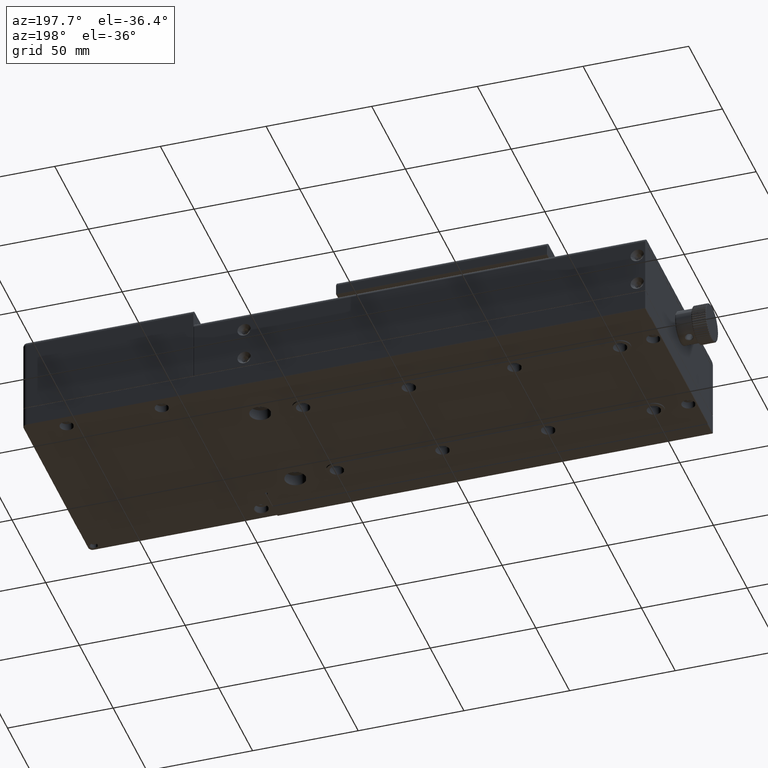
[diagram: clean part render]
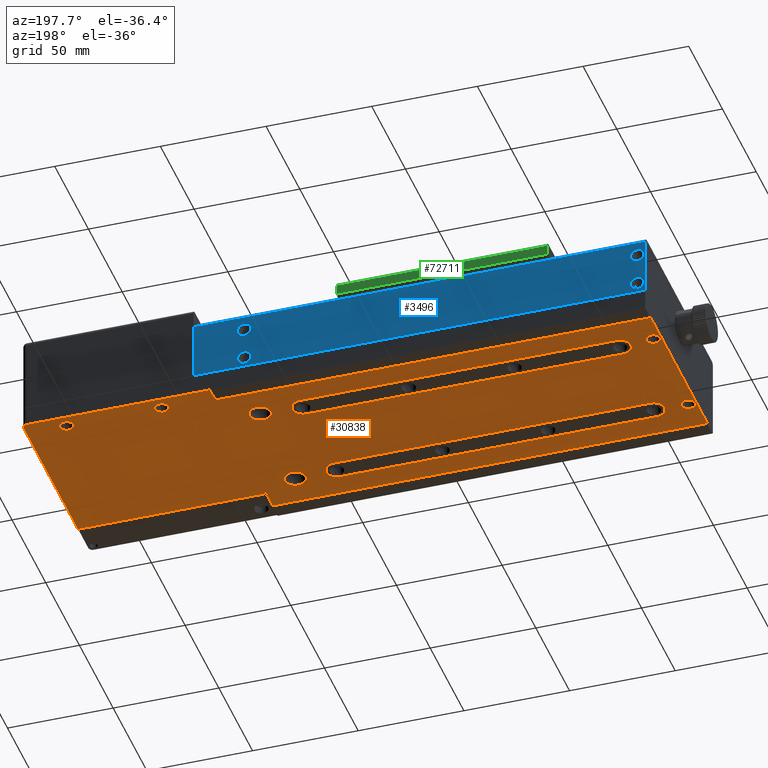
[diagram: same view with three faces highlighted in distinct colors, each labeled with its STEP entity id]
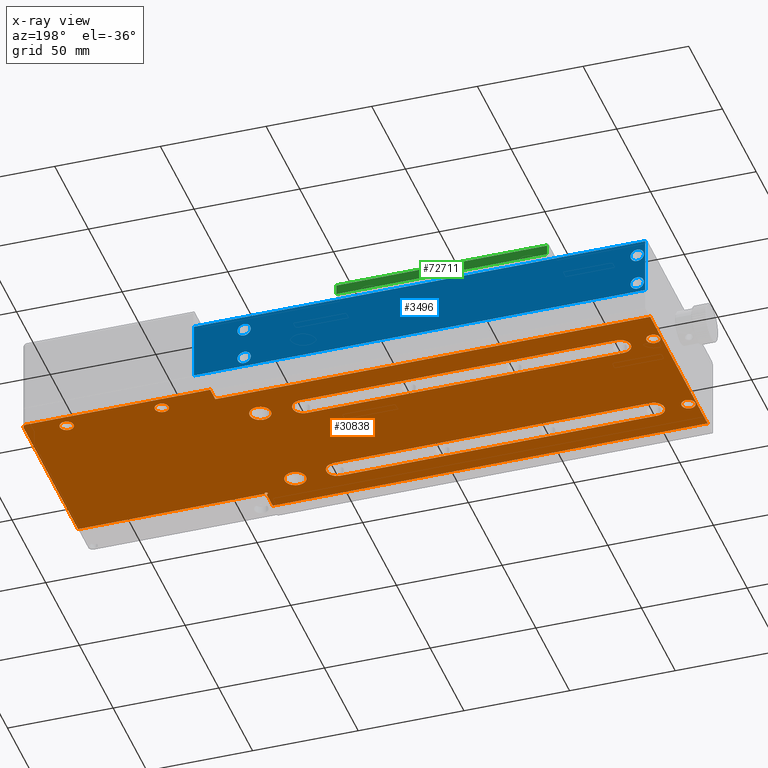
[diagram: x-ray of the same camera — body ghosted, the three highlighted faces saturated]
A machine part, auxiliary view with three faces highlighted in distinct colors.
The next image is the same camera in x-ray (body ghosted, the three faces saturated) — at least one of them is partly hidden behind the body in this view.
Their STEP definitions:

[orange] entity #30838 — the highlighted planar face has unit normal (0, 0, -1).
#260 = CARTESIAN_POINT ( 'NONE',  ( 1.039208799709893993, -15.00575141257550094, -4.500000000000000000 ) ) ;
#372 = DIRECTION ( 'NONE',  ( -1.000000000000000000, 0.000000000000000000, 0.000000000000000000 ) ) ;
#397 = ORIENTED_EDGE ( 'NONE', *, *, #12141, .F. ) ;
#851 = AXIS2_PLACEMENT_3D ( 'NONE', #67346, #29065, #39942 ) ;
#1474 = CARTESIAN_POINT ( 'NONE',  ( 124.0392087997100106, 59.99424858742450084, -4.500000000000000000 ) ) ;
#1729 = ORIENTED_EDGE ( 'NONE', *, *, #6424, .T. ) ;
#1809 = ORIENTED_EDGE ( 'NONE', *, *, #42033, .F. ) ;
#2228 = CARTESIAN_POINT ( 'NONE',  ( 1.039208799709893993, -20.00575141257549916, -4.500000000000000000 ) ) ;
#2288 = CIRCLE ( 'NONE', #3477, 5.000000000000000888 ) ;
#2392 = LINE ( 'NONE', #42519, #38881 ) ;
#2519 = DIRECTION ( 'NONE',  ( 1.000000000000000000, 0.000000000000000000, 0.000000000000000000 ) ) ;
#2535 = CARTESIAN_POINT ( 'NONE',  ( 110.2892087997097974, 53.49424858742450084, -4.500000000000000000 ) ) ;
#2768 = CARTESIAN_POINT ( 'NONE',  ( -168.7607912002899866, 52.49424858742450084, -4.500000000000000000 ) ) ;
#3369 = ORIENTED_EDGE ( 'NONE', *, *, #17003, .T. ) ;
#3477 = AXIS2_PLACEMENT_3D ( 'NONE', #35249, #58526, #372 ) ;
#3532 = DIRECTION ( 'NONE',  ( 0.000000000000000000, 0.000000000000000000, 1.000000000000000000 ) ) ;
#3565 = VERTEX_POINT ( 'NONE', #5712 ) ;
#3571 = EDGE_CURVE ( 'NONE', #11707, #47376, #60717, .T. ) ;
#4117 = ORIENTED_EDGE ( 'NONE', *, *, #12962, .T. ) ;
#4467 = EDGE_CURVE ( 'NONE', #59487, #14482, #13471, .T. ) ;
#4777 = CARTESIAN_POINT ( 'NONE',  ( 21.03920879970990043, 35.99424858742454347, -4.500000000000000000 ) ) ;
#5304 = CARTESIAN_POINT ( 'NONE',  ( 1.039208799709893993, 39.99424858742450084, -4.500000000000000000 ) ) ;
#5417 = CARTESIAN_POINT ( 'NONE',  ( -164.9607912002900036, -16.00575141257549916, -4.500000000000000000 ) ) ;
#5444 = VERTEX_POINT ( 'NONE', #59047 ) ;
#5712 = CARTESIAN_POINT ( 'NONE',  ( 103.7892087997099964, 53.49424858742450084, -4.500000000000000000 ) ) ;
#5863 = AXIS2_PLACEMENT_3D ( 'NONE', #6024, #45044, #62305 ) ;
#6024 = CARTESIAN_POINT ( 'NONE',  ( 37.03920879970985425, -22.80575141257549987, -4.500000000000000000 ) ) ;
#6221 = EDGE_CURVE ( 'NONE', #21733, #59487, #43617, .T. ) ;
#6424 = EDGE_CURVE ( 'NONE', #14981, #46180, #73620, .T. ) ;
#6694 = CARTESIAN_POINT ( 'NONE',  ( 6.039208799709900433, -15.00575141257550094, -4.500000000000000000 ) ) ;
#6892 = EDGE_LOOP ( 'NONE', ( #33093, #73965 ) ) ;
#7125 = DIRECTION ( 'NONE',  ( 0.000000000000000000, 0.000000000000000000, -1.000000000000000000 ) ) ;
#7179 = DIRECTION ( 'NONE',  ( -1.000000000000000000, 0.000000000000000000, 0.000000000000000000 ) ) ;
#7228 = FACE_BOUND ( 'NONE', #31924, .T. ) ;
#7364 = ORIENTED_EDGE ( 'NONE', *, *, #14759, .F. ) ;
#7446 = ORIENTED_EDGE ( 'NONE', *, *, #4467, .F. ) ;
#7488 = DIRECTION ( 'NONE',  ( -1.000000000000000000, 0.000000000000000000, 0.000000000000000000 ) ) ;
#7490 = CARTESIAN_POINT ( 'NONE',  ( 16.03920879970989688, 35.99424858742454347, -4.500000000000000000 ) ) ;
#7786 = EDGE_CURVE ( 'NONE', #14482, #40719, #58883, .T. ) ;
#8776 = AXIS2_PLACEMENT_3D ( 'NONE', #29463, #46691, #69566 ) ;
#8870 = VERTEX_POINT ( 'NONE', #12626 ) ;
#9773 = EDGE_LOOP ( 'NONE', ( #43996, #7446, #61356, #73186, #73623 ) ) ;
#10016 = DIRECTION ( 'NONE',  ( 0.000000000000000000, 0.000000000000000000, -1.000000000000000000 ) ) ;
#10289 = CARTESIAN_POINT ( 'NONE',  ( -148.9607912002899752, 29.99424858742450084, -4.500000000000000000 ) ) ;
#10540 = CARTESIAN_POINT ( 'NONE',  ( -168.7607912002899866, 52.49424858742450084, -4.500000000000000000 ) ) ;
#11295 = AXIS2_PLACEMENT_3D ( 'NONE', #260, #23158, #46017 ) ;
#11413 = DIRECTION ( 'NONE',  ( -1.000000000000000000, 0.000000000000000000, 0.000000000000000000 ) ) ;
#11509 = VECTOR ( 'NONE', #19862, 1000.000000000000000 ) ;
#11707 = VERTEX_POINT ( 'NONE', #59305 ) ;
#11720 = CARTESIAN_POINT ( 'NONE',  ( 126.0392087997099821, 52.49424858742450084, -4.500000000000000000 ) ) ;
#11771 = EDGE_LOOP ( 'NONE', ( #44816, #38352 ) ) ;
#12141 = EDGE_CURVE ( 'NONE', #14125, #16841, #53582, .T. ) ;
#12170 = ORIENTED_EDGE ( 'NONE', *, *, #57199, .T. ) ;
#12285 = VERTEX_POINT ( 'NONE', #20914 ) ;
#12451 = CIRCLE ( 'NONE', #65148, 3.250000000000002665 ) ;
#12626 = CARTESIAN_POINT ( 'NONE',  ( 58.78920879970989688, 53.49424858742450084, -4.500000000000000000 ) ) ;
#12843 = FACE_BOUND ( 'NONE', #60702, .T. ) ;
#12962 = EDGE_CURVE ( 'NONE', #71847, #74077, #2392, .T. ) ;
#12978 = CARTESIAN_POINT ( 'NONE',  ( 37.78920879970985425, -22.80575141257549987, -4.500000000000000000 ) ) ;
#13111 = DIRECTION ( 'NONE',  ( -1.000000000000000000, 0.000000000000000000, 0.000000000000000000 ) ) ;
#13471 = CIRCLE ( 'NONE', #63735, 4.999999999999999112 ) ;
#13686 = EDGE_LOOP ( 'NONE', ( #7364, #42168 ) ) ;
#13828 = CARTESIAN_POINT ( 'NONE',  ( -168.2107912002899752, 35.99424858742454347, -4.500000000000000000 ) ) ;
#14125 = VERTEX_POINT ( 'NONE', #18161 ) ;
#14321 = EDGE_CURVE ( 'NONE', #63554, #65011, #31293, .T. ) ;
#14482 = VERTEX_POINT ( 'NONE', #63113 ) ;
#14496 = AXIS2_PLACEMENT_3D ( 'NONE', #33269, #67379, #38156 ) ;
#14759 = EDGE_CURVE ( 'NONE', #3565, #69851, #41466, .T. ) ;
#14774 = EDGE_CURVE ( 'NONE', #57636, #14125, #29539, .T. ) ;
#14863 = CARTESIAN_POINT ( 'NONE',  ( -164.9607912002900036, 35.99424858742454347, -4.500000000000000000 ) ) ;
#14972 = CARTESIAN_POINT ( 'NONE',  ( 126.0392087997099821, 52.49424858742450084, -4.500000000000000000 ) ) ;
#14981 = VERTEX_POINT ( 'NONE', #29995 ) ;
#15032 = VERTEX_POINT ( 'NONE', #7490 ) ;
#15577 = DIRECTION ( 'NONE',  ( -1.000000000000000000, 0.000000000000000000, 0.000000000000000000 ) ) ;
#15602 = DIRECTION ( 'NONE',  ( -1.000000000000000000, 0.000000000000000000, 0.000000000000000000 ) ) ;
#15784 = DIRECTION ( 'NONE',  ( 0.000000000000000000, 0.000000000000000000, -1.000000000000000000 ) ) ;
#15805 = DIRECTION ( 'NONE',  ( 0.000000000000000000, -1.000000000000000000, 0.000000000000000000 ) ) ;
#15873 = DIRECTION ( 'NONE',  ( 0.000000000000000000, 1.000000000000000000, 0.000000000000000000 ) ) ;
#16116 = CIRCLE ( 'NONE', #44870, 3.250000000000002665 ) ;
#16170 = AXIS2_PLACEMENT_3D ( 'NONE', #47215, #7125, #13111 ) ;
#16841 = VERTEX_POINT ( 'NONE', #10289 ) ;
#16851 = ORIENTED_EDGE ( 'NONE', *, *, #58655, .F. ) ;
#17003 = EDGE_CURVE ( 'NONE', #49618, #30947, #26610, .T. ) ;
#17722 = DIRECTION ( 'NONE',  ( -1.000000000000000000, 0.000000000000000000, 0.000000000000000000 ) ) ;
#18161 = CARTESIAN_POINT ( 'NONE',  ( 1.039208799709893993, 29.99424858742450084, -4.500000000000000000 ) ) ;
#18681 = EDGE_LOOP ( 'NONE', ( #33038, #1729 ) ) ;
#18770 = VERTEX_POINT ( 'NONE', #51972 ) ;
#19092 = EDGE_LOOP ( 'NONE', ( #51270, #45440 ) ) ;
#19493 = ORIENTED_EDGE ( 'NONE', *, *, #48808, .F. ) ;
#19537 = DIRECTION ( 'NONE',  ( 0.000000000000000000, 0.000000000000000000, 1.000000000000000000 ) ) ;
#19862 = DIRECTION ( 'NONE',  ( -1.000000000000000000, 0.000000000000000000, 0.000000000000000000 ) ) ;
#20375 = EDGE_CURVE ( 'NONE', #15032, #34967, #46310, .T. ) ;
#20411 = CARTESIAN_POINT ( 'NONE',  ( 21.03920879970990043, 35.99424858742454347, -4.500000000000000000 ) ) ;
#20686 = DIRECTION ( 'NONE',  ( 0.000000000000000000, 0.000000000000000000, -1.000000000000000000 ) ) ;
#20914 = CARTESIAN_POINT ( 'NONE',  ( -148.9607912002899752, -10.00575141257547962, -4.500000000000000000 ) ) ;
#21334 = AXIS2_PLACEMENT_3D ( 'NONE', #4777, #71927, #62162 ) ;
#21733 = VERTEX_POINT ( 'NONE', #69610 ) ;
#21755 = VECTOR ( 'NONE', #17722, 1000.000000000000000 ) ;
#22341 = DIRECTION ( 'NONE',  ( 0.000000000000000000, 0.000000000000000000, 1.000000000000000000 ) ) ;
#22655 = CARTESIAN_POINT ( 'NONE',  ( 1.039208799709893993, 39.99424858742450084, -4.500000000000000000 ) ) ;
#22858 = VERTEX_POINT ( 'NONE', #49528 ) ;
#23158 = DIRECTION ( 'NONE',  ( 0.000000000000000000, 0.000000000000000000, -1.000000000000000000 ) ) ;
#24106 = FACE_BOUND ( 'NONE', #9773, .T. ) ;
#24960 = LINE ( 'NONE', #70686, #56540 ) ;
#25092 = CARTESIAN_POINT ( 'NONE',  ( 1.039208799709893993, 29.99424858742450084, -4.500000000000000000 ) ) ;
#25289 = DIRECTION ( 'NONE',  ( 1.000000000000000000, 0.000000000000000000, 0.000000000000000000 ) ) ;
#25334 = EDGE_CURVE ( 'NONE', #22858, #47276, #38033, .T. ) ;
#25931 = CIRCLE ( 'NONE', #72665, 3.250000000000002665 ) ;
#26398 = EDGE_CURVE ( 'NONE', #34967, #15032, #70307, .T. ) ;
#26428 = DIRECTION ( 'NONE',  ( -1.000000000000000000, 0.000000000000000000, 0.000000000000000000 ) ) ;
#26610 = LINE ( 'NONE', #14972, #49593 ) ;
#26708 = PLANE ( 'NONE',  #50485 ) ;
#26947 = AXIS2_PLACEMENT_3D ( 'NONE', #14863, #54632, #15602 ) ;
#27006 = CIRCLE ( 'NONE', #42572, 5.000000000000004441 ) ;
#27016 = ORIENTED_EDGE ( 'NONE', *, *, #20375, .T. ) ;
#27022 = EDGE_CURVE ( 'NONE', #65006, #60079, #72951, .T. ) ;
#28321 = AXIS2_PLACEMENT_3D ( 'NONE', #44290, #15784, #38678 ) ;
#28875 = LINE ( 'NONE', #73904, #63390 ) ;
#29059 = ORIENTED_EDGE ( 'NONE', *, *, #48883, .F. ) ;
#29065 = DIRECTION ( 'NONE',  ( 0.000000000000000000, 0.000000000000000000, -1.000000000000000000 ) ) ;
#29463 = CARTESIAN_POINT ( 'NONE',  ( 62.03920879970990399, 53.49424858742450084, -4.500000000000000000 ) ) ;
#29539 = CIRCLE ( 'NONE', #71473, 4.999999999999999112 ) ;
#29610 = EDGE_CURVE ( 'NONE', #22858, #63554, #62027, .T. ) ;
#29995 = CARTESIAN_POINT ( 'NONE',  ( -161.7107912002900036, 35.99424858742454347, -4.500000000000000000 ) ) ;
#30125 = VECTOR ( 'NONE', #2519, 1000.000000000000000 ) ;
#30317 = EDGE_CURVE ( 'NONE', #30947, #60079, #58706, .T. ) ;
#30584 = CIRCLE ( 'NONE', #54520, 4.999999999999999112 ) ;
#30838 = ADVANCED_FACE ( 'NONE', ( #24106, #46953, #12843, #52969, #35723, #58617, #7228, #70212, #44305 ), #26708, .T. ) ;
#30924 = ORIENTED_EDGE ( 'NONE', *, *, #30317, .T. ) ;
#30947 = VERTEX_POINT ( 'NONE', #60462 ) ;
#31293 = LINE ( 'NONE', #2768, #48604 ) ;
#31446 = DIRECTION ( 'NONE',  ( -1.000000000000000000, 0.000000000000000000, 0.000000000000000000 ) ) ;
#31717 = AXIS2_PLACEMENT_3D ( 'NONE', #55644, #45480, #51113 ) ;
#31924 = EDGE_LOOP ( 'NONE', ( #397, #73493, #16851, #1809, #29059 ) ) ;
#32249 = VECTOR ( 'NONE', #62723, 1000.000000000000000 ) ;
#32892 = DIRECTION ( 'NONE',  ( -1.000000000000000000, 0.000000000000000000, 0.000000000000000000 ) ) ;
#32982 = ORIENTED_EDGE ( 'NONE', *, *, #29610, .T. ) ;
#33038 = ORIENTED_EDGE ( 'NONE', *, *, #48230, .T. ) ;
#33093 = ORIENTED_EDGE ( 'NONE', *, *, #53687, .T. ) ;
#33269 = CARTESIAN_POINT ( 'NONE',  ( 107.0392087997097974, 53.49424858742450084, -4.500000000000000000 ) ) ;
#34967 = VERTEX_POINT ( 'NONE', #55741 ) ;
#34969 = EDGE_CURVE ( 'NONE', #40719, #12285, #65549, .T. ) ;
#35083 = EDGE_CURVE ( 'NONE', #49618, #74077, #58329, .T. ) ;
#35249 = CARTESIAN_POINT ( 'NONE',  ( 21.03920879970990043, -16.00575141257549916, -4.500000000000000000 ) ) ;
#35723 = FACE_BOUND ( 'NONE', #18681, .T. ) ;
#37177 = CARTESIAN_POINT ( 'NONE',  ( 37.03920879970985425, -23.55575141257549987, -4.500000000000000000 ) ) ;
#37347 = DIRECTION ( 'NONE',  ( 0.000000000000000000, 0.000000000000000000, -1.000000000000000000 ) ) ;
#37439 = CARTESIAN_POINT ( 'NONE',  ( -168.7607912002899866, -32.50575141257549916, -4.500000000000000000 ) ) ;
#37893 = AXIS2_PLACEMENT_3D ( 'NONE', #70909, #19537, #7179 ) ;
#37938 = CARTESIAN_POINT ( 'NONE',  ( 62.03920879970990399, 53.49424858742450084, -4.500000000000000000 ) ) ;
#38033 = LINE ( 'NONE', #71793, #66572 ) ;
#38156 = DIRECTION ( 'NONE',  ( -1.000000000000000000, 0.000000000000000000, 0.000000000000000000 ) ) ;
#38352 = ORIENTED_EDGE ( 'NONE', *, *, #61160, .T. ) ;
#38678 = DIRECTION ( 'NONE',  ( -1.000000000000000000, 0.000000000000000000, 0.000000000000000000 ) ) ;
#38881 = VECTOR ( 'NONE', #25289, 1000.000000000000000 ) ;
#39503 = CARTESIAN_POINT ( 'NONE',  ( 126.0392087997099821, -32.50575141257549916, -4.500000000000000000 ) ) ;
#39843 = LINE ( 'NONE', #11720, #32249 ) ;
#39942 = DIRECTION ( 'NONE',  ( -1.000000000000000000, 0.000000000000000000, 0.000000000000000000 ) ) ;
#40719 = VERTEX_POINT ( 'NONE', #69475 ) ;
#41466 = CIRCLE ( 'NONE', #28321, 3.250000000000002665 ) ;
#42033 = EDGE_CURVE ( 'NONE', #18770, #69328, #68388, .T. ) ;
#42168 = ORIENTED_EDGE ( 'NONE', *, *, #55554, .F. ) ;
#42519 = CARTESIAN_POINT ( 'NONE',  ( -168.9607912002899752, 59.99424858742450084, -4.500000000000000000 ) ) ;
#42572 = AXIS2_PLACEMENT_3D ( 'NONE', #69723, #63395, #7488 ) ;
#43617 = CIRCLE ( 'NONE', #11295, 4.999999999999999112 ) ;
#43996 = ORIENTED_EDGE ( 'NONE', *, *, #7786, .F. ) ;
#44230 = CARTESIAN_POINT ( 'NONE',  ( -164.9607912002900036, -16.00575141257549916, -4.500000000000000000 ) ) ;
#44290 = CARTESIAN_POINT ( 'NONE',  ( 107.0392087997097974, 53.49424858742450084, -4.500000000000000000 ) ) ;
#44305 = FACE_OUTER_BOUND ( 'NONE', #72515, .T. ) ;
#44641 = CARTESIAN_POINT ( 'NONE',  ( 16.03920879970989688, -16.00575141257549916, -4.500000000000000000 ) ) ;
#44816 = ORIENTED_EDGE ( 'NONE', *, *, #71693, .T. ) ;
#44870 = AXIS2_PLACEMENT_3D ( 'NONE', #37938, #53702, #49174 ) ;
#45044 = DIRECTION ( 'NONE',  ( 0.000000000000000000, 0.000000000000000000, -1.000000000000000000 ) ) ;
#45440 = ORIENTED_EDGE ( 'NONE', *, *, #48607, .F. ) ;
#45480 = DIRECTION ( 'NONE',  ( 0.000000000000000000, 0.000000000000000000, 1.000000000000000000 ) ) ;
#46017 = DIRECTION ( 'NONE',  ( -1.000000000000000000, 0.000000000000000000, 0.000000000000000000 ) ) ;
#46180 = VERTEX_POINT ( 'NONE', #13828 ) ;
#46310 = CIRCLE ( 'NONE', #21334, 5.000000000000000888 ) ;
#46595 = ORIENTED_EDGE ( 'NONE', *, *, #25334, .F. ) ;
#46691 = DIRECTION ( 'NONE',  ( 0.000000000000000000, 0.000000000000000000, -1.000000000000000000 ) ) ;
#46953 = FACE_BOUND ( 'NONE', #6892, .T. ) ;
#47215 = CARTESIAN_POINT ( 'NONE',  ( 37.03920879970985425, -22.80575141257549987, -4.500000000000000000 ) ) ;
#47242 = CARTESIAN_POINT ( 'NONE',  ( 65.28920879970989688, 53.49424858742450084, -4.500000000000000000 ) ) ;
#47276 = VERTEX_POINT ( 'NONE', #37177 ) ;
#47376 = VERTEX_POINT ( 'NONE', #44641 ) ;
#47755 = CARTESIAN_POINT ( 'NONE',  ( 37.03920879970985425, 59.99424858742450084, -4.500000000000000000 ) ) ;
#48183 = DIRECTION ( 'NONE',  ( 0.000000000000000000, 1.000000000000000000, 0.000000000000000000 ) ) ;
#48230 = EDGE_CURVE ( 'NONE', #46180, #14981, #54453, .T. ) ;
#48539 = DIRECTION ( 'NONE',  ( -1.224646799147351975E-16, 1.000000000000000000, 0.000000000000000000 ) ) ;
#48604 = VECTOR ( 'NONE', #48539, 1000.000000000000000 ) ;
#48607 = EDGE_CURVE ( 'NONE', #60805, #8870, #16116, .T. ) ;
#48808 = EDGE_CURVE ( 'NONE', #47276, #65006, #70072, .T. ) ;
#48883 = EDGE_CURVE ( 'NONE', #16841, #18770, #27006, .T. ) ;
#49174 = DIRECTION ( 'NONE',  ( -1.000000000000000000, 0.000000000000000000, 0.000000000000000000 ) ) ;
#49528 = CARTESIAN_POINT ( 'NONE',  ( 37.03920879970985425, -32.50575141257549916, -4.500000000000000000 ) ) ;
#49593 = VECTOR ( 'NONE', #53633, 1000.000000000000000 ) ;
#49618 = VERTEX_POINT ( 'NONE', #50567 ) ;
#50485 = AXIS2_PLACEMENT_3D ( 'NONE', #67190, #20686, #15805 ) ;
#50567 = CARTESIAN_POINT ( 'NONE',  ( 126.0392087997099821, 57.99424858742449373, -4.500000000000000000 ) ) ;
#51113 = DIRECTION ( 'NONE',  ( -1.000000000000000000, 0.000000000000000000, 0.000000000000000000 ) ) ;
#51270 = ORIENTED_EDGE ( 'NONE', *, *, #68541, .F. ) ;
#51972 = CARTESIAN_POINT ( 'NONE',  ( -148.9607912002899752, 39.99424858742450084, -4.500000000000000000 ) ) ;
#52130 = DIRECTION ( 'NONE',  ( 0.000000000000000000, 0.000000000000000000, -1.000000000000000000 ) ) ;
#52969 = FACE_BOUND ( 'NONE', #11771, .T. ) ;
#53058 = CARTESIAN_POINT ( 'NONE',  ( -168.9607912002899752, -22.80575141257549987, -4.500000000000000000 ) ) ;
#53395 = VERTEX_POINT ( 'NONE', #66436 ) ;
#53432 = DIRECTION ( 'NONE',  ( -1.000000000000000000, 0.000000000000000000, 0.000000000000000000 ) ) ;
#53582 = LINE ( 'NONE', #25092, #65109 ) ;
#53633 = DIRECTION ( 'NONE',  ( 0.000000000000000000, -1.000000000000000000, 0.000000000000000000 ) ) ;
#53687 = EDGE_CURVE ( 'NONE', #47376, #11707, #2288, .T. ) ;
#53702 = DIRECTION ( 'NONE',  ( 0.000000000000000000, 0.000000000000000000, -1.000000000000000000 ) ) ;
#54453 = CIRCLE ( 'NONE', #31717, 3.250000000000002665 ) ;
#54520 = AXIS2_PLACEMENT_3D ( 'NONE', #61399, #10016, #32892 ) ;
#54632 = DIRECTION ( 'NONE',  ( 0.000000000000000000, 0.000000000000000000, 1.000000000000000000 ) ) ;
#54822 = CARTESIAN_POINT ( 'NONE',  ( 1.039208799709893993, 34.99424858742449373, -4.500000000000000000 ) ) ;
#55554 = EDGE_CURVE ( 'NONE', #69851, #3565, #64769, .T. ) ;
#55644 = CARTESIAN_POINT ( 'NONE',  ( -164.9607912002900036, 35.99424858742454347, -4.500000000000000000 ) ) ;
#55741 = CARTESIAN_POINT ( 'NONE',  ( 26.03920879970990043, 35.99424858742454347, -4.500000000000000000 ) ) ;
#56097 = ORIENTED_EDGE ( 'NONE', *, *, #35083, .F. ) ;
#56540 = VECTOR ( 'NONE', #48183, 1000.000000000000000 ) ;
#57169 = AXIS2_PLACEMENT_3D ( 'NONE', #20411, #3532, #26428 ) ;
#57191 = DIRECTION ( 'NONE',  ( 0.000000000000000000, 0.000000000000000000, 1.000000000000000000 ) ) ;
#57199 = EDGE_CURVE ( 'NONE', #5444, #71847, #24960, .T. ) ;
#57636 = VERTEX_POINT ( 'NONE', #64600 ) ;
#58329 = CIRCLE ( 'NONE', #69111, 2.000000000000001776 ) ;
#58526 = DIRECTION ( 'NONE',  ( 0.000000000000000000, 0.000000000000000000, 1.000000000000000000 ) ) ;
#58617 = FACE_BOUND ( 'NONE', #19092, .T. ) ;
#58655 = EDGE_CURVE ( 'NONE', #69328, #57636, #30584, .T. ) ;
#58706 = LINE ( 'NONE', #53058, #62597 ) ;
#58883 = LINE ( 'NONE', #2228, #11509 ) ;
#59047 = CARTESIAN_POINT ( 'NONE',  ( 37.03920879970985425, 52.49424858742450084, -4.500000000000000000 ) ) ;
#59305 = CARTESIAN_POINT ( 'NONE',  ( 26.03920879970990043, -16.00575141257549916, -4.500000000000000000 ) ) ;
#59336 = ORIENTED_EDGE ( 'NONE', *, *, #64637, .T. ) ;
#59487 = VERTEX_POINT ( 'NONE', #6694 ) ;
#60079 = VERTEX_POINT ( 'NONE', #12978 ) ;
#60462 = CARTESIAN_POINT ( 'NONE',  ( 126.0392087997099821, -22.80575141257549987, -4.500000000000000000 ) ) ;
#60702 = EDGE_LOOP ( 'NONE', ( #27016, #64631 ) ) ;
#60717 = CIRCLE ( 'NONE', #37893, 5.000000000000000888 ) ;
#60805 = VERTEX_POINT ( 'NONE', #47242 ) ;
#61160 = EDGE_CURVE ( 'NONE', #73529, #53395, #25931, .T. ) ;
#61356 = ORIENTED_EDGE ( 'NONE', *, *, #6221, .F. ) ;
#61399 = CARTESIAN_POINT ( 'NONE',  ( 1.039208799709893993, 34.99424858742449373, -4.500000000000000000 ) ) ;
#61451 = CIRCLE ( 'NONE', #8776, 3.250000000000002665 ) ;
#62027 = LINE ( 'NONE', #39503, #21755 ) ;
#62162 = DIRECTION ( 'NONE',  ( -1.000000000000000000, 0.000000000000000000, 0.000000000000000000 ) ) ;
#62305 = DIRECTION ( 'NONE',  ( -1.000000000000000000, 0.000000000000000000, 0.000000000000000000 ) ) ;
#62462 = DIRECTION ( 'NONE',  ( -1.000000000000000000, 0.000000000000000000, 0.000000000000000000 ) ) ;
#62597 = VECTOR ( 'NONE', #53432, 1000.000000000000000 ) ;
#62723 = DIRECTION ( 'NONE',  ( 1.000000000000000000, 0.000000000000000000, 0.000000000000000000 ) ) ;
#63113 = CARTESIAN_POINT ( 'NONE',  ( 1.039208799709893993, -20.00575141257549916, -4.500000000000000000 ) ) ;
#63390 = VECTOR ( 'NONE', #68256, 1000.000000000000000 ) ;
#63395 = DIRECTION ( 'NONE',  ( 0.000000000000000000, 0.000000000000000000, -1.000000000000000000 ) ) ;
#63397 = DIRECTION ( 'NONE',  ( -1.000000000000000000, 0.000000000000000000, 0.000000000000000000 ) ) ;
#63554 = VERTEX_POINT ( 'NONE', #37439 ) ;
#63735 = AXIS2_PLACEMENT_3D ( 'NONE', #65485, #37347, #15577 ) ;
#64600 = CARTESIAN_POINT ( 'NONE',  ( 6.039208799709900433, 34.99424858742449373, -4.500000000000000000 ) ) ;
#64631 = ORIENTED_EDGE ( 'NONE', *, *, #26398, .T. ) ;
#64637 = EDGE_CURVE ( 'NONE', #65011, #5444, #39843, .T. ) ;
#64769 = CIRCLE ( 'NONE', #14496, 3.250000000000002665 ) ;
#64959 = EDGE_CURVE ( 'NONE', #12285, #21733, #28875, .T. ) ;
#65006 = VERTEX_POINT ( 'NONE', #67524 ) ;
#65011 = VERTEX_POINT ( 'NONE', #10540 ) ;
#65109 = VECTOR ( 'NONE', #31446, 1000.000000000000000 ) ;
#65148 = AXIS2_PLACEMENT_3D ( 'NONE', #5417, #57191, #11413 ) ;
#65485 = CARTESIAN_POINT ( 'NONE',  ( 1.039208799709893993, -15.00575141257550094, -4.500000000000000000 ) ) ;
#65549 = CIRCLE ( 'NONE', #851, 5.000000000000004441 ) ;
#66436 = CARTESIAN_POINT ( 'NONE',  ( -168.2107912002899752, -16.00575141257549916, -4.500000000000000000 ) ) ;
#66572 = VECTOR ( 'NONE', #15873, 1000.000000000000000 ) ;
#67109 = DIRECTION ( 'NONE',  ( 0.000000000000000000, 0.000000000000000000, 1.000000000000000000 ) ) ;
#67190 = CARTESIAN_POINT ( 'NONE',  ( -168.9607912002899752, 59.99424858742450084, -4.500000000000000000 ) ) ;
#67346 = CARTESIAN_POINT ( 'NONE',  ( -148.9607912002899752, -15.00575141257550094, -4.500000000000000000 ) ) ;
#67379 = DIRECTION ( 'NONE',  ( 0.000000000000000000, 0.000000000000000000, -1.000000000000000000 ) ) ;
#67524 = CARTESIAN_POINT ( 'NONE',  ( 36.28920879970984714, -22.80575141257549987, -4.500000000000000000 ) ) ;
#68256 = DIRECTION ( 'NONE',  ( 1.000000000000000000, 0.000000000000000000, 0.000000000000000000 ) ) ;
#68358 = CARTESIAN_POINT ( 'NONE',  ( -161.7107912002900036, -16.00575141257549916, -4.500000000000000000 ) ) ;
#68388 = LINE ( 'NONE', #22655, #30125 ) ;
#68541 = EDGE_CURVE ( 'NONE', #8870, #60805, #61451, .T. ) ;
#68574 = DIRECTION ( 'NONE',  ( -1.000000000000000000, 0.000000000000000000, 0.000000000000000000 ) ) ;
#69111 = AXIS2_PLACEMENT_3D ( 'NONE', #73720, #22341, #62462 ) ;
#69328 = VERTEX_POINT ( 'NONE', #5304 ) ;
#69475 = CARTESIAN_POINT ( 'NONE',  ( -148.9607912002899752, -20.00575141257549916, -4.500000000000000000 ) ) ;
#69566 = DIRECTION ( 'NONE',  ( -1.000000000000000000, 0.000000000000000000, 0.000000000000000000 ) ) ;
#69610 = CARTESIAN_POINT ( 'NONE',  ( 1.039208799709893993, -10.00575141257547962, -4.500000000000000000 ) ) ;
#69723 = CARTESIAN_POINT ( 'NONE',  ( -148.9607912002899752, 34.99424858742449373, -4.500000000000000000 ) ) ;
#69851 = VERTEX_POINT ( 'NONE', #2535 ) ;
#70072 = CIRCLE ( 'NONE', #16170, 0.7500000000000145439 ) ;
#70212 = FACE_BOUND ( 'NONE', #13686, .T. ) ;
#70307 = CIRCLE ( 'NONE', #57169, 5.000000000000000888 ) ;
#70686 = CARTESIAN_POINT ( 'NONE',  ( 37.03920879970985425, 52.49424858742450084, -4.500000000000000000 ) ) ;
#70909 = CARTESIAN_POINT ( 'NONE',  ( 21.03920879970990043, -16.00575141257549916, -4.500000000000000000 ) ) ;
#71436 = ORIENTED_EDGE ( 'NONE', *, *, #14321, .T. ) ;
#71473 = AXIS2_PLACEMENT_3D ( 'NONE', #54822, #52130, #63397 ) ;
#71693 = EDGE_CURVE ( 'NONE', #53395, #73529, #12451, .T. ) ;
#71793 = CARTESIAN_POINT ( 'NONE',  ( 37.03920879970985425, 59.99424858742450084, -4.500000000000000000 ) ) ;
#71847 = VERTEX_POINT ( 'NONE', #47755 ) ;
#71927 = DIRECTION ( 'NONE',  ( 0.000000000000000000, 0.000000000000000000, 1.000000000000000000 ) ) ;
#72515 = EDGE_LOOP ( 'NONE', ( #56097, #3369, #30924, #74089, #19493, #46595, #32982, #71436, #59336, #12170, #4117 ) ) ;
#72665 = AXIS2_PLACEMENT_3D ( 'NONE', #44230, #67109, #68574 ) ;
#72951 = CIRCLE ( 'NONE', #5863, 0.7500000000000145439 ) ;
#73186 = ORIENTED_EDGE ( 'NONE', *, *, #64959, .F. ) ;
#73493 = ORIENTED_EDGE ( 'NONE', *, *, #14774, .F. ) ;
#73529 = VERTEX_POINT ( 'NONE', #68358 ) ;
#73620 = CIRCLE ( 'NONE', #26947, 3.250000000000002665 ) ;
#73623 = ORIENTED_EDGE ( 'NONE', *, *, #34969, .F. ) ;
#73720 = CARTESIAN_POINT ( 'NONE',  ( 124.0392087997100106, 57.99424858742449373, -4.500000000000000000 ) ) ;
#73904 = CARTESIAN_POINT ( 'NONE',  ( 1.039208799709893993, -10.00575141257547962, -4.500000000000000000 ) ) ;
#73965 = ORIENTED_EDGE ( 'NONE', *, *, #3571, .T. ) ;
#74077 = VERTEX_POINT ( 'NONE', #1474 ) ;
#74089 = ORIENTED_EDGE ( 'NONE', *, *, #27022, .F. ) ;

[blue] entity #3496 — the highlighted planar face has unit normal (0, -1, 0).
#794 = DIRECTION ( 'NONE',  ( -1.000000000000000000, -1.402885900802285989E-16, 0.000000000000000000 ) ) ;
#1193 = VERTEX_POINT ( 'NONE', #26063 ) ;
#1552 = EDGE_CURVE ( 'NONE', #61775, #69776, #34812, .T. ) ;
#1627 = DIRECTION ( 'NONE',  ( -1.000000000000000000, 0.000000000000000000, 0.000000000000000000 ) ) ;
#2503 = CARTESIAN_POINT ( 'NONE',  ( -161.8107912002899980, 59.99424858742450084, 25.50000000000000000 ) ) ;
#3496 = ADVANCED_FACE ( 'NONE', ( #52183, #34927, #44073, #62339, #51081 ), #57467, .F. ) ;
#4773 = VERTEX_POINT ( 'NONE', #58301 ) ;
#4795 = ORIENTED_EDGE ( 'NONE', *, *, #15024, .T. ) ;
#4835 = EDGE_CURVE ( 'NONE', #12271, #51980, #49448, .T. ) ;
#5303 = CARTESIAN_POINT ( 'NONE',  ( 21.03920879970990043, 59.99424858742450084, 10.00000000000000000 ) ) ;
#5653 = EDGE_CURVE ( 'NONE', #51980, #12271, #65159, .T. ) ;
#5740 = DIRECTION ( 'NONE',  ( 0.000000000000000000, 1.000000000000000000, -3.728673554401470280E-16 ) ) ;
#6356 = DIRECTION ( 'NONE',  ( -1.000000000000000000, 0.000000000000000000, 0.000000000000000000 ) ) ;
#6622 = ORIENTED_EDGE ( 'NONE', *, *, #4835, .F. ) ;
#6960 = EDGE_CURVE ( 'NONE', #28044, #10349, #24575, .T. ) ;
#7059 = CARTESIAN_POINT ( 'NONE',  ( -164.9607912002900036, 59.99424858742450084, 10.00000000000000000 ) ) ;
#7852 = CARTESIAN_POINT ( 'NONE',  ( -168.9607912002899752, 59.99424858742450084, 32.50000000000000000 ) ) ;
#8089 = DIRECTION ( 'NONE',  ( -1.000000000000000000, -1.402885900802285989E-16, 1.402885900802285989E-16 ) ) ;
#8770 = EDGE_CURVE ( 'NONE', #69776, #70452, #17645, .T. ) ;
#10349 = VERTEX_POINT ( 'NONE', #56341 ) ;
#11125 = AXIS2_PLACEMENT_3D ( 'NONE', #51911, #40664, #1627 ) ;
#12018 = DIRECTION ( 'NONE',  ( 1.782391016549329977E-17, 3.728673554401470280E-16, 1.000000000000000000 ) ) ;
#12085 = CIRCLE ( 'NONE', #33676, 3.149999999999986144 ) ;
#12271 = VERTEX_POINT ( 'NONE', #55428 ) ;
#12399 = DIRECTION ( 'NONE',  ( 0.000000000000000000, 1.000000000000000000, -3.728673554401470280E-16 ) ) ;
#13625 = CIRCLE ( 'NONE', #16034, 3.149999999999986144 ) ;
#13630 = ORIENTED_EDGE ( 'NONE', *, *, #61845, .F. ) ;
#15024 = EDGE_CURVE ( 'NONE', #70452, #4773, #30744, .T. ) ;
#15140 = DIRECTION ( 'NONE',  ( 0.000000000000000000, 1.000000000000000000, -3.728673554401470280E-16 ) ) ;
#16034 = AXIS2_PLACEMENT_3D ( 'NONE', #35218, #63371, #6356 ) ;
#17273 = DIRECTION ( 'NONE',  ( 0.000000000000000000, 1.000000000000000000, -3.728673554401470280E-16 ) ) ;
#17591 = EDGE_LOOP ( 'NONE', ( #61687, #21754 ) ) ;
#17645 = LINE ( 'NONE', #40533, #24984 ) ;
#18027 = DIRECTION ( 'NONE',  ( -1.000000000000000000, 0.000000000000000000, 0.000000000000000000 ) ) ;
#18399 = AXIS2_PLACEMENT_3D ( 'NONE', #20754, #38022, #42524 ) ;
#19837 = CIRCLE ( 'NONE', #29405, 3.149999999999999911 ) ;
#20754 = CARTESIAN_POINT ( 'NONE',  ( 21.03920879970990043, 59.99424858742460032, 25.50000000000000000 ) ) ;
#21436 = ORIENTED_EDGE ( 'NONE', *, *, #5653, .F. ) ;
#21754 = ORIENTED_EDGE ( 'NONE', *, *, #6960, .F. ) ;
#22618 = CARTESIAN_POINT ( 'NONE',  ( 21.03920879970990043, 59.99424858742450084, 10.00000000000000000 ) ) ;
#22784 = EDGE_LOOP ( 'NONE', ( #25212, #13630 ) ) ;
#23188 = DIRECTION ( 'NONE',  ( 0.000000000000000000, 1.000000000000000000, -3.728673554401470280E-16 ) ) ;
#23871 = EDGE_CURVE ( 'NONE', #42071, #32630, #67591, .T. ) ;
#24575 = CIRCLE ( 'NONE', #54502, 3.149999999999986144 ) ;
#24984 = VECTOR ( 'NONE', #12018, 1000.000000000000000 ) ;
#25212 = ORIENTED_EDGE ( 'NONE', *, *, #55333, .F. ) ;
#26048 = CIRCLE ( 'NONE', #51188, 3.149999999999986144 ) ;
#26063 = CARTESIAN_POINT ( 'NONE',  ( -161.8107912002899980, 59.99424858742450084, 10.00000000000000000 ) ) ;
#28044 = VERTEX_POINT ( 'NONE', #2503 ) ;
#28087 = AXIS2_PLACEMENT_3D ( 'NONE', #22618, #5740, #39852 ) ;
#28938 = DIRECTION ( 'NONE',  ( 1.402885900802285989E-16, -1.000000000000000000, 3.728673554401470280E-16 ) ) ;
#29405 = AXIS2_PLACEMENT_3D ( 'NONE', #5303, #17273, #57440 ) ;
#29897 = EDGE_CURVE ( 'NONE', #4773, #61775, #46498, .T. ) ;
#30744 = LINE ( 'NONE', #7852, #41523 ) ;
#32242 = EDGE_CURVE ( 'NONE', #32630, #42071, #19837, .T. ) ;
#32630 = VERTEX_POINT ( 'NONE', #51322 ) ;
#33083 = CARTESIAN_POINT ( 'NONE',  ( 17.88920879970989830, 59.99424858742460032, 25.50000000000000000 ) ) ;
#33676 = AXIS2_PLACEMENT_3D ( 'NONE', #7059, #23188, #64044 ) ;
#33860 = VERTEX_POINT ( 'NONE', #45198 ) ;
#34812 = LINE ( 'NONE', #68936, #46455 ) ;
#34927 = FACE_BOUND ( 'NONE', #17591, .T. ) ;
#35218 = CARTESIAN_POINT ( 'NONE',  ( -164.9607912002900036, 59.99424858742450084, 25.50000000000000000 ) ) ;
#37033 = CARTESIAN_POINT ( 'NONE',  ( 17.88920879970989830, 59.99424858742450084, 10.00000000000000000 ) ) ;
#37612 = EDGE_LOOP ( 'NONE', ( #41924, #45705 ) ) ;
#38022 = DIRECTION ( 'NONE',  ( 0.000000000000000000, 1.000000000000000000, -3.728673554401470280E-16 ) ) ;
#38036 = DIRECTION ( 'NONE',  ( -1.000000000000000000, 0.000000000000000000, 0.000000000000000000 ) ) ;
#39852 = DIRECTION ( 'NONE',  ( -1.000000000000000000, 0.000000000000000000, 0.000000000000000000 ) ) ;
#40520 = DIRECTION ( 'NONE',  ( -1.402885900802285989E-16, -3.728673554401470280E-16, -1.000000000000000000 ) ) ;
#40533 = CARTESIAN_POINT ( 'NONE',  ( -168.7607912002899866, 59.99424858742450084, 34.50000000000000000 ) ) ;
#40664 = DIRECTION ( 'NONE',  ( 0.000000000000000000, 1.000000000000000000, -3.728673554401470280E-16 ) ) ;
#41523 = VECTOR ( 'NONE', #64495, 1000.000000000000000 ) ;
#41924 = ORIENTED_EDGE ( 'NONE', *, *, #23871, .F. ) ;
#42071 = VERTEX_POINT ( 'NONE', #37033 ) ;
#42524 = DIRECTION ( 'NONE',  ( -1.000000000000000000, 0.000000000000000000, 0.000000000000000000 ) ) ;
#43626 = CARTESIAN_POINT ( 'NONE',  ( -164.9607912002900036, 59.99424858742450084, 25.50000000000000000 ) ) ;
#43955 = CARTESIAN_POINT ( 'NONE',  ( -168.7607912002899866, 59.99424858742450084, 32.50000000000000000 ) ) ;
#44073 = FACE_BOUND ( 'NONE', #46654, .T. ) ;
#45198 = CARTESIAN_POINT ( 'NONE',  ( -168.1107912002899809, 59.99424858742450084, 10.00000000000000000 ) ) ;
#45270 = EDGE_CURVE ( 'NONE', #10349, #28044, #13625, .T. ) ;
#45705 = ORIENTED_EDGE ( 'NONE', *, *, #32242, .F. ) ;
#46274 = AXIS2_PLACEMENT_3D ( 'NONE', #49699, #28938, #794 ) ;
#46455 = VECTOR ( 'NONE', #8089, 1000.000000000000000 ) ;
#46498 = LINE ( 'NONE', #52866, #70889 ) ;
#46654 = EDGE_LOOP ( 'NONE', ( #21436, #6622 ) ) ;
#47653 = CARTESIAN_POINT ( 'NONE',  ( -164.9607912002900036, 59.99424858742450084, 10.00000000000000000 ) ) ;
#49448 = CIRCLE ( 'NONE', #11125, 3.149999999999999911 ) ;
#49699 = CARTESIAN_POINT ( 'NONE',  ( -168.9607912002899752, 59.99424858742450084, 34.50000000000000000 ) ) ;
#51081 = FACE_OUTER_BOUND ( 'NONE', #51531, .T. ) ;
#51188 = AXIS2_PLACEMENT_3D ( 'NONE', #47653, #12399, #18027 ) ;
#51322 = CARTESIAN_POINT ( 'NONE',  ( 24.18920879970989901, 59.99424858742450084, 10.00000000000000000 ) ) ;
#51531 = EDGE_LOOP ( 'NONE', ( #4795, #72290, #54183, #58171 ) ) ;
#51911 = CARTESIAN_POINT ( 'NONE',  ( 21.03920879970990043, 59.99424858742460032, 25.50000000000000000 ) ) ;
#51980 = VERTEX_POINT ( 'NONE', #33083 ) ;
#52183 = FACE_BOUND ( 'NONE', #22784, .T. ) ;
#52866 = CARTESIAN_POINT ( 'NONE',  ( 44.83920879970990114, 59.99424858742460032, 34.50000000000000000 ) ) ;
#54183 = ORIENTED_EDGE ( 'NONE', *, *, #1552, .T. ) ;
#54502 = AXIS2_PLACEMENT_3D ( 'NONE', #43626, #15140, #38036 ) ;
#55227 = CARTESIAN_POINT ( 'NONE',  ( 44.83920879970990114, 59.99424858742450084, 5.200000000000000178 ) ) ;
#55333 = EDGE_CURVE ( 'NONE', #33860, #1193, #12085, .T. ) ;
#55428 = CARTESIAN_POINT ( 'NONE',  ( 24.18920879970989901, 59.99424858742460032, 25.50000000000000000 ) ) ;
#56341 = CARTESIAN_POINT ( 'NONE',  ( -168.1107912002899809, 59.99424858742450084, 25.50000000000000000 ) ) ;
#57440 = DIRECTION ( 'NONE',  ( -1.000000000000000000, 0.000000000000000000, 0.000000000000000000 ) ) ;
#57467 = PLANE ( 'NONE',  #46274 ) ;
#58171 = ORIENTED_EDGE ( 'NONE', *, *, #8770, .T. ) ;
#58301 = CARTESIAN_POINT ( 'NONE',  ( 44.83920879970990114, 59.99424858742460032, 32.50000000000000000 ) ) ;
#61687 = ORIENTED_EDGE ( 'NONE', *, *, #45270, .F. ) ;
#61775 = VERTEX_POINT ( 'NONE', #55227 ) ;
#61845 = EDGE_CURVE ( 'NONE', #1193, #33860, #26048, .T. ) ;
#62339 = FACE_BOUND ( 'NONE', #37612, .T. ) ;
#63371 = DIRECTION ( 'NONE',  ( 0.000000000000000000, 1.000000000000000000, -3.728673554401470280E-16 ) ) ;
#64044 = DIRECTION ( 'NONE',  ( -1.000000000000000000, 0.000000000000000000, 0.000000000000000000 ) ) ;
#64495 = DIRECTION ( 'NONE',  ( 1.000000000000000000, 1.402885900802285989E-16, -1.402885900802285989E-16 ) ) ;
#65159 = CIRCLE ( 'NONE', #18399, 3.149999999999999911 ) ;
#67591 = CIRCLE ( 'NONE', #28087, 3.149999999999999911 ) ;
#68936 = CARTESIAN_POINT ( 'NONE',  ( -168.9607912002899752, 59.99424858742450084, 5.200000000000000178 ) ) ;
#69776 = VERTEX_POINT ( 'NONE', #73852 ) ;
#70452 = VERTEX_POINT ( 'NONE', #43955 ) ;
#70889 = VECTOR ( 'NONE', #40520, 1000.000000000000000 ) ;
#72290 = ORIENTED_EDGE ( 'NONE', *, *, #29897, .T. ) ;
#73852 = CARTESIAN_POINT ( 'NONE',  ( -168.7607912002899866, 59.99424858742450084, 5.200000000000000178 ) ) ;

[green] entity #72711 — the highlighted planar face has unit normal (0, -1, 0).
#2954 = CARTESIAN_POINT ( 'NONE',  ( -22.66872086758850102, 59.99424858742450084, 40.50000000000000000 ) ) ;
#6369 = CARTESIAN_POINT ( 'NONE',  ( -122.4687208675883880, 59.99424858742450084, 43.00000000000000000 ) ) ;
#8423 = DIRECTION ( 'NONE',  ( -1.000000000000000000, 0.000000000000000000, 0.000000000000000000 ) ) ;
#10901 = CARTESIAN_POINT ( 'NONE',  ( -122.2687208675883852, 59.99424858742450084, 40.50000000000000000 ) ) ;
#11165 = CARTESIAN_POINT ( 'NONE',  ( -122.2687208675883852, 59.99424858742450084, 43.00000000000000000 ) ) ;
#12113 = ORIENTED_EDGE ( 'NONE', *, *, #28563, .T. ) ;
#12385 = AXIS2_PLACEMENT_3D ( 'NONE', #6369, #35230, #73910 ) ;
#16705 = EDGE_CURVE ( 'NONE', #27544, #36116, #55293, .T. ) ;
#24850 = VERTEX_POINT ( 'NONE', #65883 ) ;
#27544 = VERTEX_POINT ( 'NONE', #10901 ) ;
#28563 = EDGE_CURVE ( 'NONE', #24850, #64041, #65422, .T. ) ;
#31140 = LINE ( 'NONE', #54369, #56886 ) ;
#32421 = CARTESIAN_POINT ( 'NONE',  ( -22.46872086758850173, 59.99424858742450084, 40.50000000000000000 ) ) ;
#35230 = DIRECTION ( 'NONE',  ( 0.000000000000000000, -1.000000000000000000, 0.000000000000000000 ) ) ;
#36116 = VERTEX_POINT ( 'NONE', #2954 ) ;
#41830 = EDGE_LOOP ( 'NONE', ( #12113, #62904, #47477, #43763 ) ) ;
#43576 = VECTOR ( 'NONE', #63047, 1000.000000000000000 ) ;
#43763 = ORIENTED_EDGE ( 'NONE', *, *, #57970, .T. ) ;
#47477 = ORIENTED_EDGE ( 'NONE', *, *, #16705, .T. ) ;
#47631 = DIRECTION ( 'NONE',  ( 0.000000000000000000, 0.000000000000000000, -1.000000000000000000 ) ) ;
#51015 = FACE_OUTER_BOUND ( 'NONE', #41830, .T. ) ;
#51290 = DIRECTION ( 'NONE',  ( 0.000000000000000000, 0.000000000000000000, 1.000000000000000000 ) ) ;
#52118 = PLANE ( 'NONE',  #12385 ) ;
#54369 = CARTESIAN_POINT ( 'NONE',  ( -22.66872086758850102, 59.99424858742450084, 43.00000000000000000 ) ) ;
#55293 = LINE ( 'NONE', #32421, #43576 ) ;
#56108 = CARTESIAN_POINT ( 'NONE',  ( -122.2687208675883852, 59.99424858742450084, 35.70000000000000284 ) ) ;
#56886 = VECTOR ( 'NONE', #47631, 1000.000000000000000 ) ;
#57970 = EDGE_CURVE ( 'NONE', #36116, #24850, #31140, .T. ) ;
#60921 = CARTESIAN_POINT ( 'NONE',  ( -122.4687208675883880, 59.99424858742450084, 35.70000000000000284 ) ) ;
#62904 = ORIENTED_EDGE ( 'NONE', *, *, #65474, .T. ) ;
#63047 = DIRECTION ( 'NONE',  ( 1.000000000000000000, 0.000000000000000000, 0.000000000000000000 ) ) ;
#63564 = VECTOR ( 'NONE', #8423, 1000.000000000000000 ) ;
#64041 = VERTEX_POINT ( 'NONE', #56108 ) ;
#64605 = VECTOR ( 'NONE', #51290, 1000.000000000000000 ) ;
#65422 = LINE ( 'NONE', #60921, #63564 ) ;
#65474 = EDGE_CURVE ( 'NONE', #64041, #27544, #73429, .T. ) ;
#65883 = CARTESIAN_POINT ( 'NONE',  ( -22.66872086758850102, 59.99424858742450084, 35.70000000000000284 ) ) ;
#72711 = ADVANCED_FACE ( 'NONE', ( #51015 ), #52118, .F. ) ;
#73429 = LINE ( 'NONE', #11165, #64605 ) ;
#73910 = DIRECTION ( 'NONE',  ( 0.000000000000000000, 0.000000000000000000, -1.000000000000000000 ) ) ;